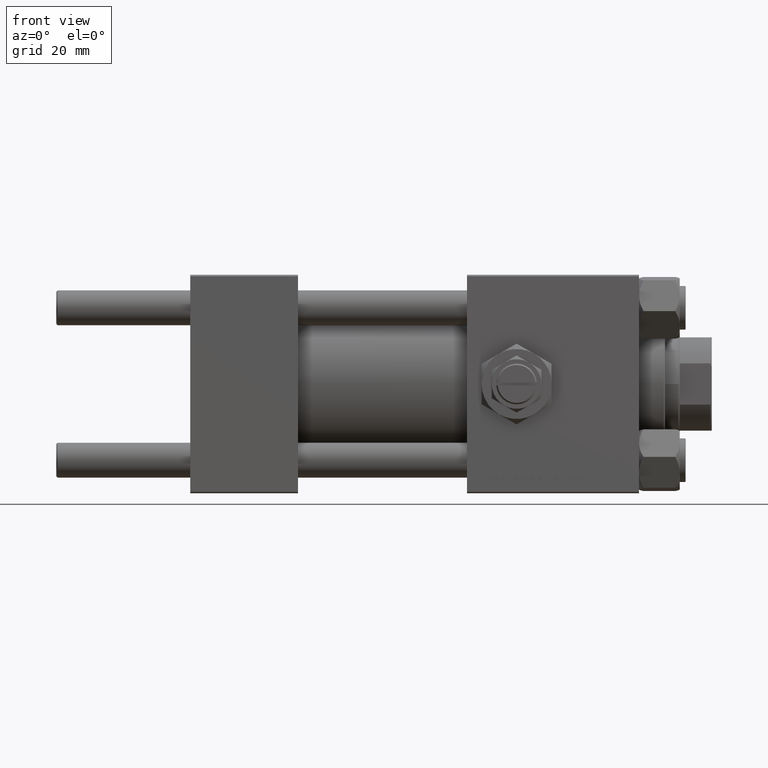
[diagram: clean part render]
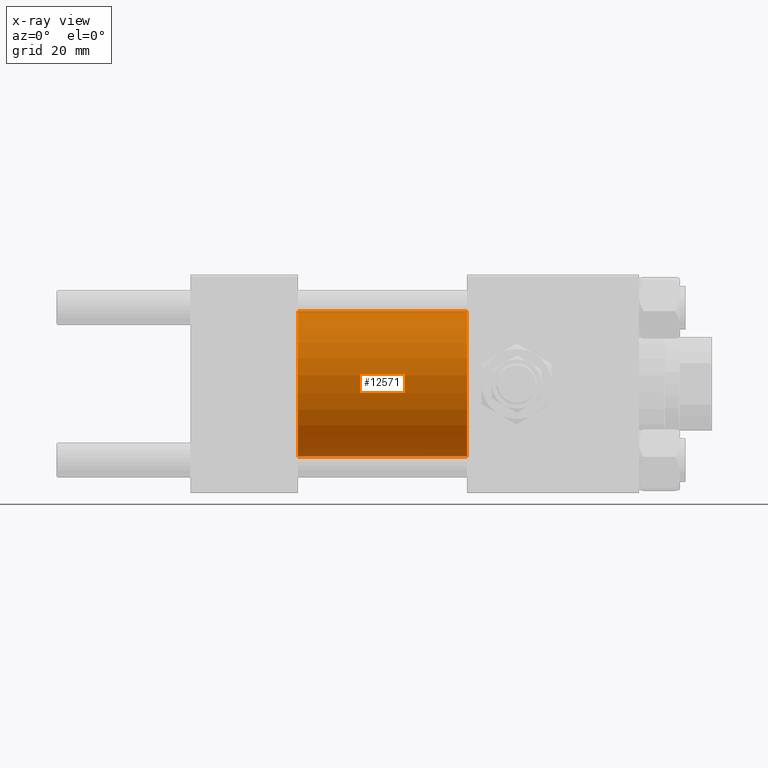
[diagram: x-ray — body ghosted, one internal face saturated and labeled with its STEP entity id]
A machine part, front view, then the same camera in x-ray: the body is ghosted and one INTERNAL B-rep face — a face not visible from any outside direction — is saturated and labeled: STEP entity #12571.
In plain terms, the highlighted cylindrical surface (partial cylindrical patch) has radius 25 mm, axis along (-1, -0, -0).
Its self-contained STEP definition (entity closure, byte-faithful):
#269 = DIRECTION ( 'NONE',  ( -1.000000000000000000, -0.000000000000000000, -0.000000000000000000 ) ) ;
#1519 = ORIENTED_EDGE ( 'NONE', *, *, #46673, .F. ) ;
#6231 = EDGE_CURVE ( 'NONE', #19023, #45823, #23640, .T. ) ;
#6653 = FACE_OUTER_BOUND ( 'NONE', #18943, .T. ) ;
#8087 = CARTESIAN_POINT ( 'NONE',  ( 37.00000000000000000, 3.061616997868382254E-15, -25.00000000000000000 ) ) ;
#10036 = CARTESIAN_POINT ( 'NONE',  ( 37.00000000000000000, 0.000000000000000000, 25.00000000000000000 ) ) ;
#10307 = DIRECTION ( 'NONE',  ( 0.000000000000000000, 0.000000000000000000, 1.000000000000000000 ) ) ;
#10493 = DIRECTION ( 'NONE',  ( 0.000000000000000000, 0.000000000000000000, -1.000000000000000000 ) ) ;
#10689 = VERTEX_POINT ( 'NONE', #32767 ) ;
#11701 = EDGE_CURVE ( 'NONE', #10689, #41128, #32207, .T. ) ;
#11989 = CARTESIAN_POINT ( 'NONE',  ( 95.00000000000000000, 3.061616997868382254E-15, -25.00000000000000000 ) ) ;
#12099 = EDGE_CURVE ( 'NONE', #41128, #45823, #48114, .T. ) ;
#12571 = ADVANCED_FACE ( 'NONE', ( #6653 ), #46453, .F. ) ;
#15654 = DIRECTION ( 'NONE',  ( -1.000000000000000000, -0.000000000000000000, -0.000000000000000000 ) ) ;
#17157 = DIRECTION ( 'NONE',  ( 0.000000000000000000, 0.000000000000000000, -1.000000000000000000 ) ) ;
#17260 = ORIENTED_EDGE ( 'NONE', *, *, #12099, .T. ) ;
#17894 = DIRECTION ( 'NONE',  ( -1.000000000000000000, -0.000000000000000000, -0.000000000000000000 ) ) ;
#18943 = EDGE_LOOP ( 'NONE', ( #30585, #17260, #31207, #1519 ) ) ;
#19023 = VERTEX_POINT ( 'NONE', #10036 ) ;
#21677 = VECTOR ( 'NONE', #269, 1000.000000000000000 ) ;
#23640 = CIRCLE ( 'NONE', #41169, 25.00000000000000000 ) ;
#27771 = CARTESIAN_POINT ( 'NONE',  ( 95.00000000000000000, 0.000000000000000000, 25.00000000000000000 ) ) ;
#30383 = DIRECTION ( 'NONE',  ( 1.000000000000000000, 0.000000000000000000, 0.000000000000000000 ) ) ;
#30585 = ORIENTED_EDGE ( 'NONE', *, *, #11701, .T. ) ;
#31207 = ORIENTED_EDGE ( 'NONE', *, *, #6231, .F. ) ;
#32207 = CIRCLE ( 'NONE', #47276, 25.00000000000000000 ) ;
#32767 = CARTESIAN_POINT ( 'NONE',  ( 95.00000000000000000, 0.000000000000000000, 25.00000000000000000 ) ) ;
#32870 = CARTESIAN_POINT ( 'NONE',  ( 37.00000000000000000, 0.000000000000000000, 0.000000000000000000 ) ) ;
#33617 = CARTESIAN_POINT ( 'NONE',  ( 95.00000000000000000, 0.000000000000000000, 0.000000000000000000 ) ) ;
#36163 = LINE ( 'NONE', #27771, #21677 ) ;
#39752 = VECTOR ( 'NONE', #15654, 1000.000000000000000 ) ;
#40032 = CARTESIAN_POINT ( 'NONE',  ( 95.00000000000000000, 3.061616997868382254E-15, -25.00000000000000000 ) ) ;
#41128 = VERTEX_POINT ( 'NONE', #40032 ) ;
#41169 = AXIS2_PLACEMENT_3D ( 'NONE', #32870, #48854, #17157 ) ;
#41385 = AXIS2_PLACEMENT_3D ( 'NONE', #33617, #17894, #10307 ) ;
#45823 = VERTEX_POINT ( 'NONE', #8087 ) ;
#46453 = CYLINDRICAL_SURFACE ( 'NONE', #41385, 25.00000000000000000 ) ;
#46673 = EDGE_CURVE ( 'NONE', #10689, #19023, #36163, .T. ) ;
#47276 = AXIS2_PLACEMENT_3D ( 'NONE', #51081, #30383, #10493 ) ;
#48114 = LINE ( 'NONE', #11989, #39752 ) ;
#48854 = DIRECTION ( 'NONE',  ( 1.000000000000000000, 0.000000000000000000, 0.000000000000000000 ) ) ;
#51081 = CARTESIAN_POINT ( 'NONE',  ( 95.00000000000000000, 0.000000000000000000, 0.000000000000000000 ) ) ;